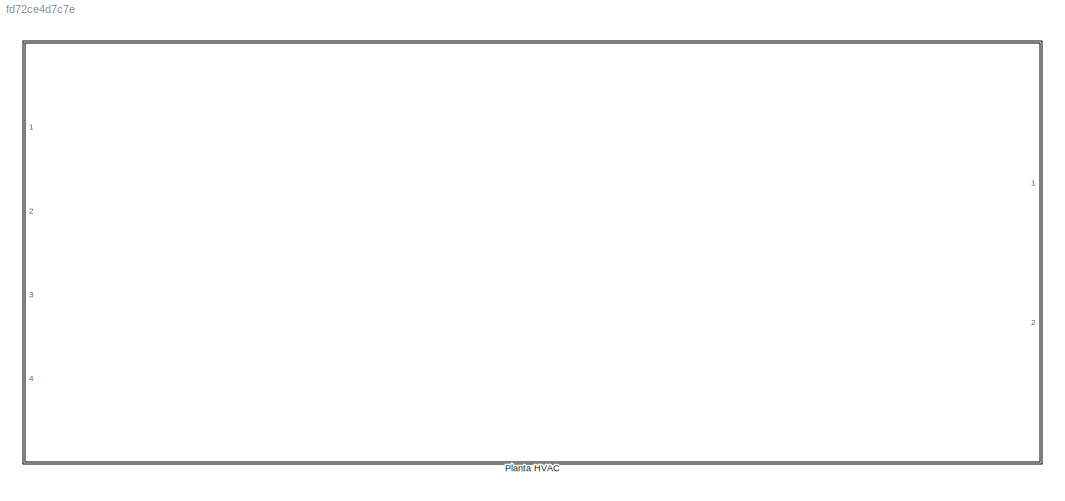
MODEL slx_fd72ce4d7c7e
KIND model
CONFIG AbsTol = auto
CONFIG EnableMultiTasking = off
CONFIG FixedStep = auto
CONFIG MaxStep = auto
CONFIG MinStep = auto
CONFIG RelTol = 1e-3
CONFIG SampleTimeConstraint = Unconstrained
CONFIG Solver = VariableStepAuto
CONFIG SolverName = VariableStepAuto
CONFIG StartTime = 0.0
CONFIG StopTime = 10.0
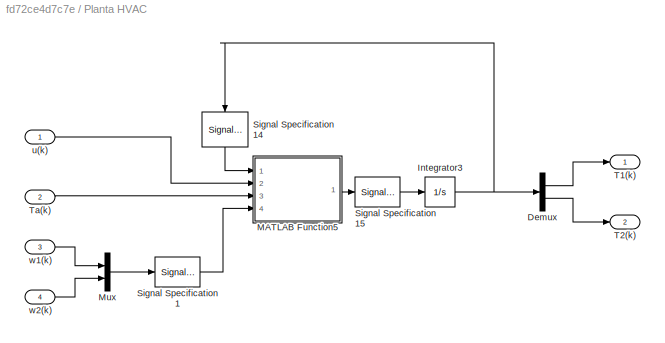
BLOCK [SubSystem] Planta HVAC
  Ports = [4, 2]
  ShowPortLabels = FromPortBlockName
BLOCK [Demux] Planta HVAC/Demux
  Outputs = 2
  Ports = [1, 2]
BLOCK [Integrator] Planta HVAC/Integrator3
  InitialCondition = [10.12;10.12]
  Ports = [1, 1]
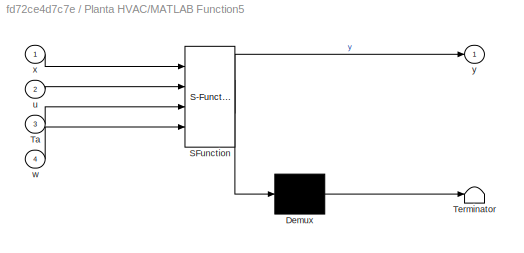
BLOCK [SubSystem] Planta HVAC/MATLAB Function5
  ErrorFcn = Stateflow.Translate.translate
  PermitHierarchicalResolution = ExplicitOnly
  Ports = [4, 1]
  SFBlockType = MATLAB Function
  TreatAsAtomicUnit = on
BLOCK [Demux] Planta HVAC/MATLAB Function5/ Demux 
  Outputs = 1
  Ports = [1, 1]
BLOCK [S-Function] Planta HVAC/MATLAB Function5/ SFunction 
  EnableBusSupport = off
  FunctionName = sf_sfun
  PortCounts = [4 2]
  Ports = [4, 2]
  SFcnIsStateOwnerBlock = off
  SFunctionDeploymentMode = off
  Tag = Stateflow S-Function SimulinkHvac_2018a 10
BLOCK [Terminator] Planta HVAC/MATLAB Function5/ Terminator 
BLOCK [Inport] Planta HVAC/MATLAB Function5/Ta
  Port = 3
BLOCK [Inport] Planta HVAC/MATLAB Function5/u
  Port = 2
BLOCK [Inport] Planta HVAC/MATLAB Function5/w
  Port = 4
BLOCK [Inport] Planta HVAC/MATLAB Function5/x
BLOCK [Outport] Planta HVAC/MATLAB Function5/y
BLOCK [Mux] Planta HVAC/Mux
  DisplayOption = bar
  Inputs = 2
  Ports = [2, 1]
BLOCK [SignalSpecification] Planta HVAC/Signal Specification1
  Dimensions = [2,1]
BLOCK [SignalSpecification] Planta HVAC/Signal Specification14
  Dimensions = [2,1]
BLOCK [SignalSpecification] Planta HVAC/Signal Specification15
  Dimensions = [2,1]
BLOCK [Outport] Planta HVAC/T1(k)
BLOCK [Outport] Planta HVAC/T2(k)
  Port = 2
BLOCK [Inport] Planta HVAC/Ta(k)
  Port = 2
BLOCK [Inport] Planta HVAC/u(k)
BLOCK [Inport] Planta HVAC/w1(k)
  Port = 3
BLOCK [Inport] Planta HVAC/w2(k)
  Port = 4
LINE Planta HVAC/Demux:1 -> Planta HVAC/T1(k):1
LINE Planta HVAC/Demux:2 -> Planta HVAC/T2(k):1
NET Planta HVAC/Integrator3:1 -> Planta HVAC/Demux:1, Planta HVAC/Signal Specification14:1
LINE Planta HVAC/MATLAB Function5:1 -> Planta HVAC/Signal Specification15:1
LINE Planta HVAC/Mux:1 -> Planta HVAC/Signal Specification1:1
LINE Planta HVAC/Signal Specification14:1 -> Planta HVAC/MATLAB Function5:1
LINE Planta HVAC/Signal Specification15:1 -> Planta HVAC/Integrator3:1
LINE Planta HVAC/Signal Specification1:1 -> Planta HVAC/MATLAB Function5:4
LINE Planta HVAC/Ta(k):1 -> Planta HVAC/MATLAB Function5:3
LINE Planta HVAC/u(k):1 -> Planta HVAC/MATLAB Function5:2
LINE Planta HVAC/w1(k):1 -> Planta HVAC/Mux:1
LINE Planta HVAC/w2(k):1 -> Planta HVAC/Mux:2
note: NET lines group one-source signal fan-out (src -> all destinations, sorted); 1:1 wires keep LINE
CHART Planta HVAC/MATLAB Function5 states=1 transitions=1
  STATE_LABEL 'eML_blk_kernel()'
  STATE_LABEL 'SCRIPT:\nfunction y = fcn(x,u,Ta,w)\n%% Parametros\nc1=2.508*10^6;\nc2=4.636*10^7;\ncp=1012;\nR=1.7*10^(-3);\nRa=1.3*10^(-3);\ndelta=0.7;\nDeltaT=13;\n%% Constantes\na1=(cp*(1-delta))/c1;\na2=1/(R*c1);\na3=1/(Ra*c1);\na4=(DeltaT*cp)/c1;\na5=1/c1;\na6=1/(R*c2);\na7=1/c2;\n%% Calculo del sistema\nxdot=zeros(2,1);\nxdot(1)=a1*(Ta-x(1))*u+a2*(x(2)-x(1))+a3*(Ta-x(1))+a4*u+a5*w(1);\nxdot(2)=a6*(x(1)-x(2))+a7*w(2);\ny = xdot;...<+1ch>'
